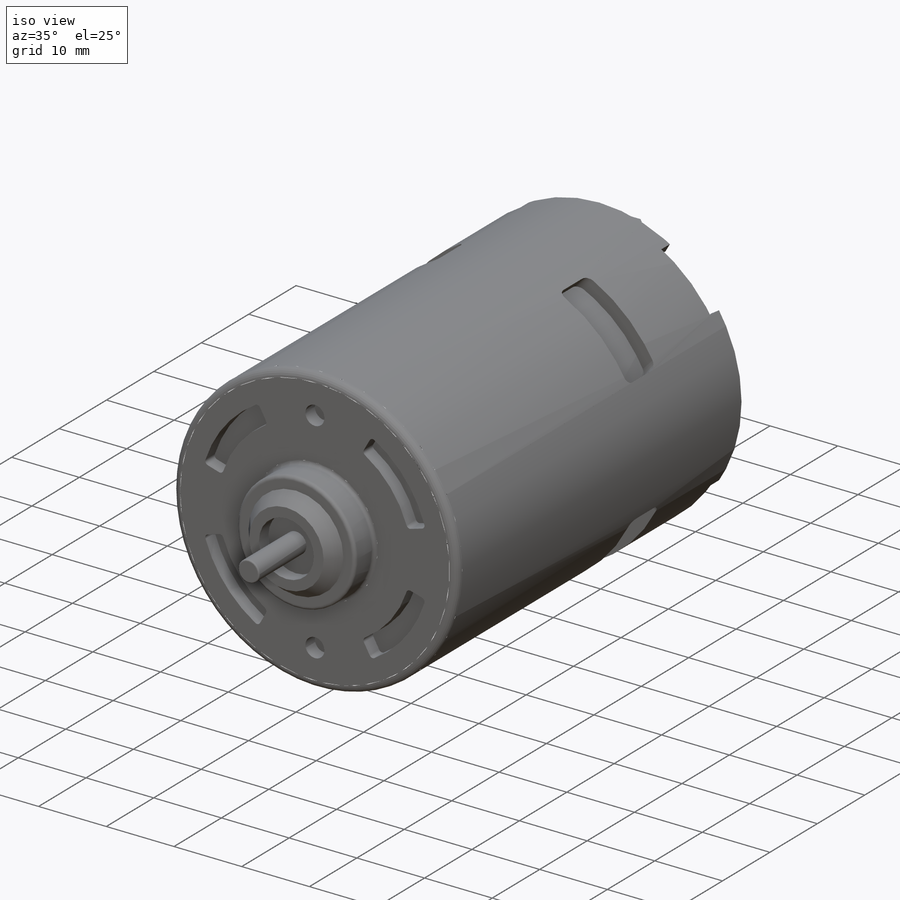
[diagram: iso view]
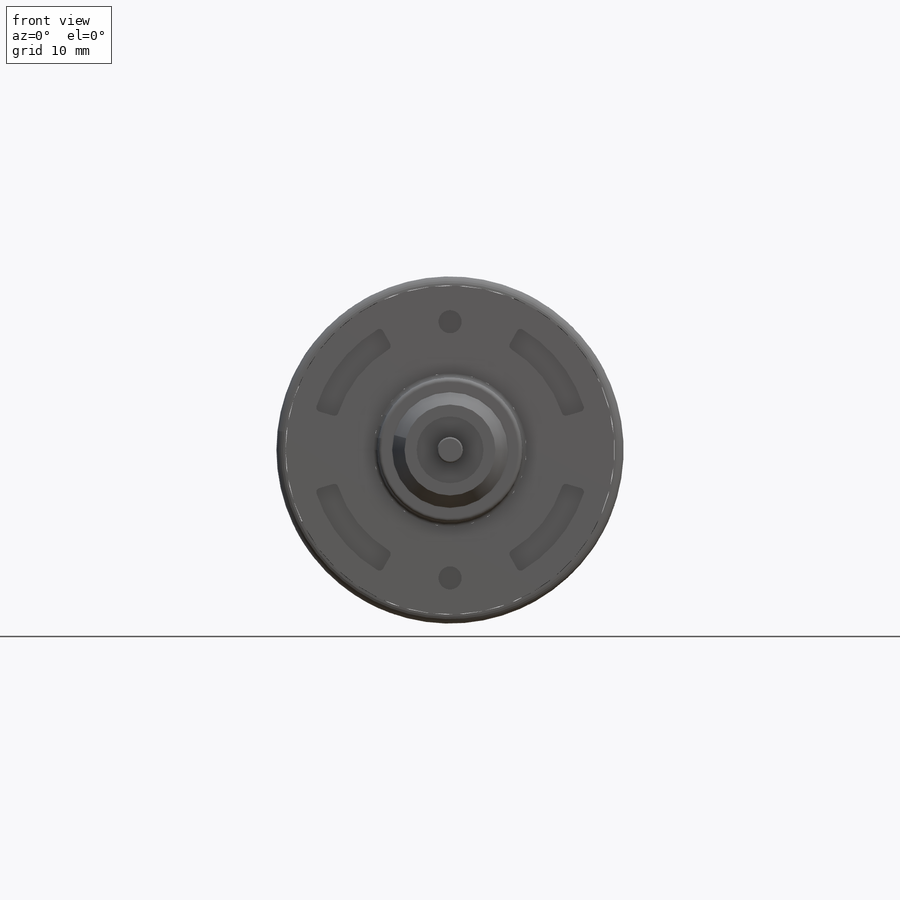
[diagram: front view]
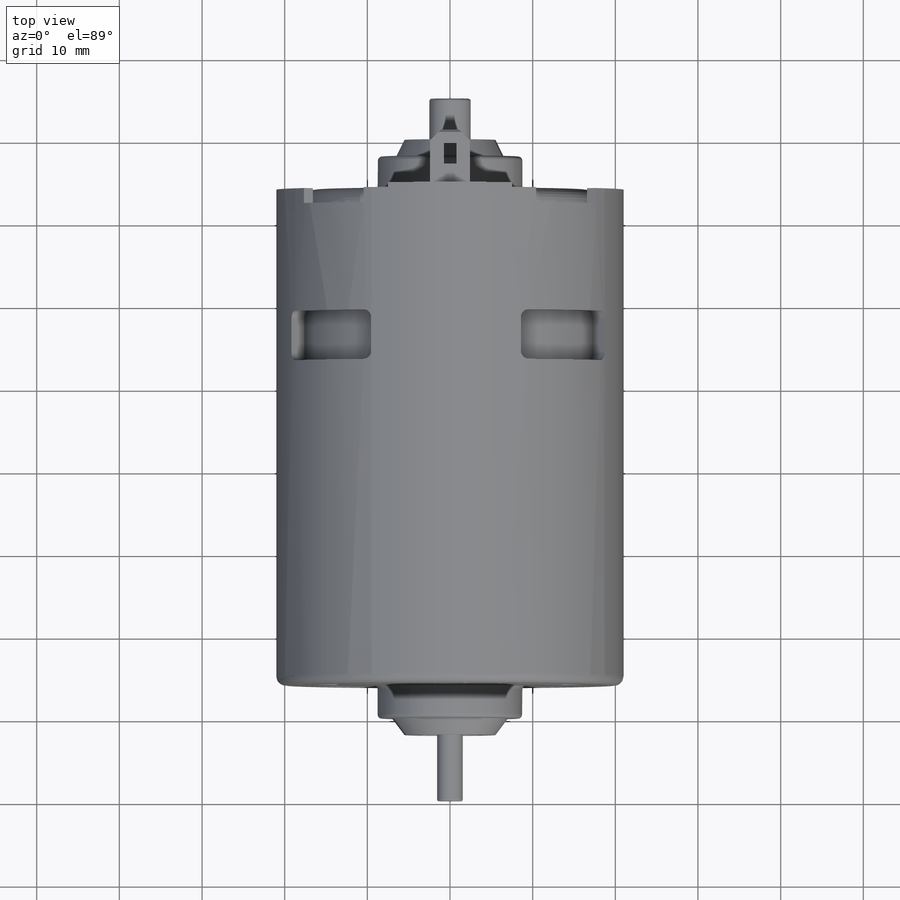
[diagram: top view]
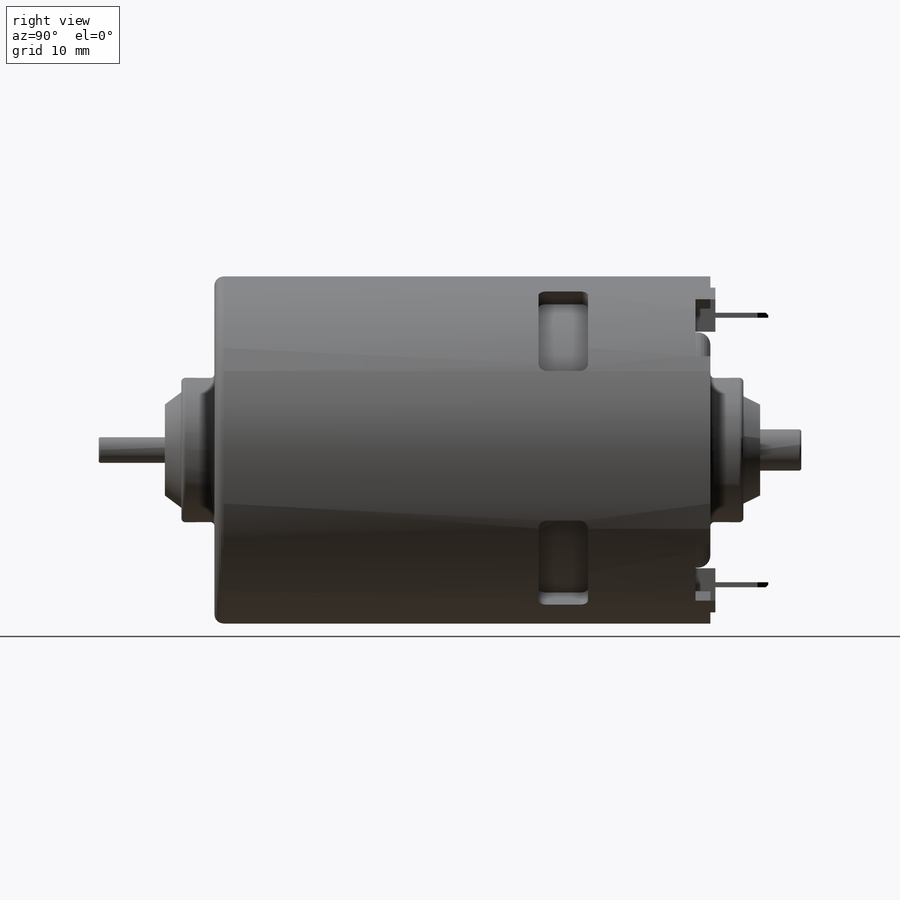
[diagram: right view]
SOLIDWORKS PART (.sldprt)
format: sldprt  version: not decoded by parser v0  size: 855,040 bytes
history: native  units: mm
features: fillet x12, sketch x9, plane x6, cut_extrude x6, chamfer x3, extrude x2, material x1, revolve x1, pattern_circular x1 (+10 scaffold rows collapsed)
feature tree (51):
  scaffold x10  (default folders/planes/origin — collapsed)
  material  "Matériau <non spécifié>"
  plane  "Plan de face"
  plane  "Plan de dessus"
  plane  "Plan de droite"
  sketch  "Esquisse1"  dims[c1.D1=3.1mm c1.D2=11.0mm c1.D3=14.0mm c1.D4=~1.514274mm c2.D4=135.0deg c2.D5=17.5mm c2.D6=42.0mm c2.D7=60.0mm c2.D8=5.0mm c2.D9=11.0mm c2.D10=13.0mm c2.D11=17.5mm c2.D12=10.0mm c2.D13=8.0mm c2.D14=~4.981687mm c2.D15=7.0mm c2.D16=15.0mm c2.D17=5.5mm c3.D4=4.0mm c3.D17=85.0mm c3.D18=4.0mm c3.D16=6.0mm c3.D19=2.5mm]
  revolve  "Révolution1"  Angle=360deg
  fillet  "Congé1"  Radius=0.2mm
  fillet  "Congé2"  Radius=0.5mm
  fillet  "Congé3"  Radius=0.5mm
  fillet  "Congé4"  Radius=0.5mm
  fillet  "Congé5"  Radius=1.1mm
  fillet  "Congé6"  Radius=0.5mm
  sketch  "Esquisse2"  dims[c1.D1=~38.068617mm c1.D2=~30.963548mm c2.D1=1.3mm c2.D2=2.0mm c2.D3=6.7mm c2.D4=6.7mm c2.D5=7.5mm c2.D6=0.0mm c2.D7=7.5mm c3.D3=2.0mm c3.D4=2.0mm c3.D5=12.0mm c3.D8=8.5mm c3.D9=10.0mm c3.D10=10.0mm]
  cut_extrude  "Enlèv. mat.-Extru.1"  Depth=1.8mm
  fillet  "Congé7"  Radius=1.5mm
  fillet  "Congé8"  Radius=1.5mm
  sketch  "Esquisse3"  dims[D1=30.0mm D2=22.0mm D3=3.25mm D4=6.5mm]
  cut_extrude  "Enlèv. mat.-Extru.3"  Depth=4mm
  fillet  "Congé9"  Radius=1mm
  sketch  "Esquisse4"  dims[D1=1.0mm]
  extrude  "Boss.-Extru.1"  Depth=0.6mm
  sketch  "Esquisse5"  dims[D1=1.0mm D2=1.0mm D5=2.4mm D6=2.4mm D3=0.3mm D4=0.3mm]
  extrude  "Boss.-Extru.2"  Depth=7mm
  sketch  "Esquisse6"  dims[D1=2.5mm D2=1.5mm D3=1.65mm D4=1.65mm D5=1.65mm]
  cut_extrude  "Enlèv. mat.-Extru.4"  [1 undecoded]
  sketch  "Esquisse7"  dims[D1=1.5mm D2=2.5mm D3=1.65mm D4=1.65mm]
  cut_extrude  "Enlèv. mat.-Extru.5"  Depth=7mm
  chamfer  "Chanfrein1"  Distance=1.3mm Angle=45deg
  chamfer  "Chanfrein2"  Distance=0.3mm Angle=45deg
  chamfer  "Chanfrein3"  Distance=0.3mm Angle=45deg
  fillet  "Congé10"  Radius=0.3mm
  plane  "plan 104"
  plane  "Plan4"
  plane  "Plan5"
  sketch  "Esquisse8"  dims[D1=14.0mm D2=6.0mm D3=13.0mm]
  cut_extrude  "Enlèv. mat.-Extru.6"  Depth=2mm
  fillet  "Congé11"  Radius=1mm
  pattern_circular  "Répétition circulaire1"  Count=4 Angle=360deg
  sketch  "Esquisse9"  dims[c1.D5=~26.542128mm c2.D5=28.5mm c2.D6=17.0mm c2.D1=31.0mm c2.D2=2.8mm c2.D3=2.8mm c3.D1=14.0mm c3.D2=7.0mm c3.D3=8.0mm c3.D4=4.0mm]
  cut_extrude  "Enlèv. mat.-Extru.7"  Depth=2mm
  fillet  "Congé12"  Radius=0.5mm
decode coverage: 33 of 34 modeling features carry decoded parameters
note: ~ marks probable driven/reference dimensions
note: 1 parameter value undecoded
note: suppression state not decoded; provenance and decode notes live in map.json
